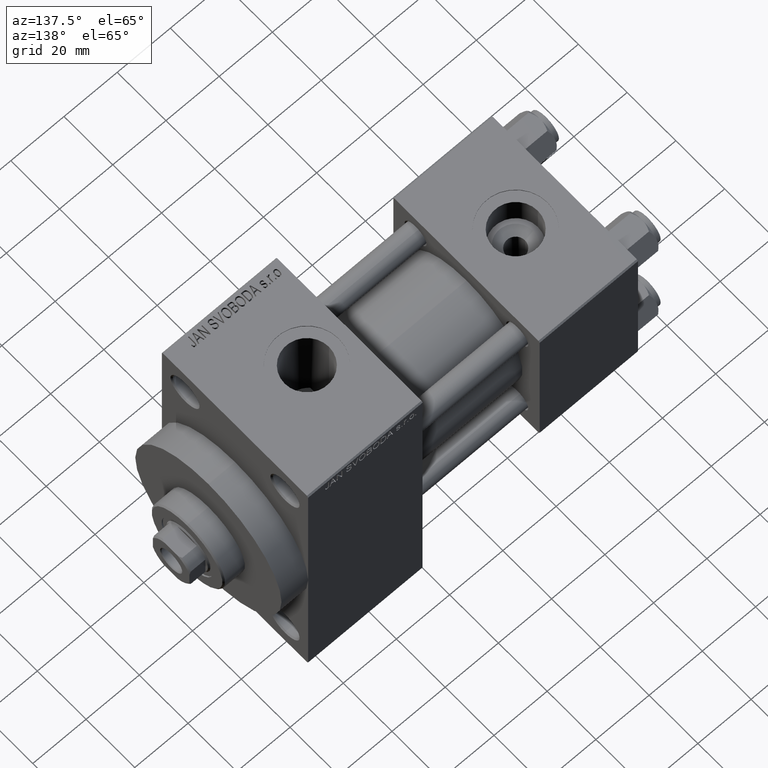
[diagram: clean part render]
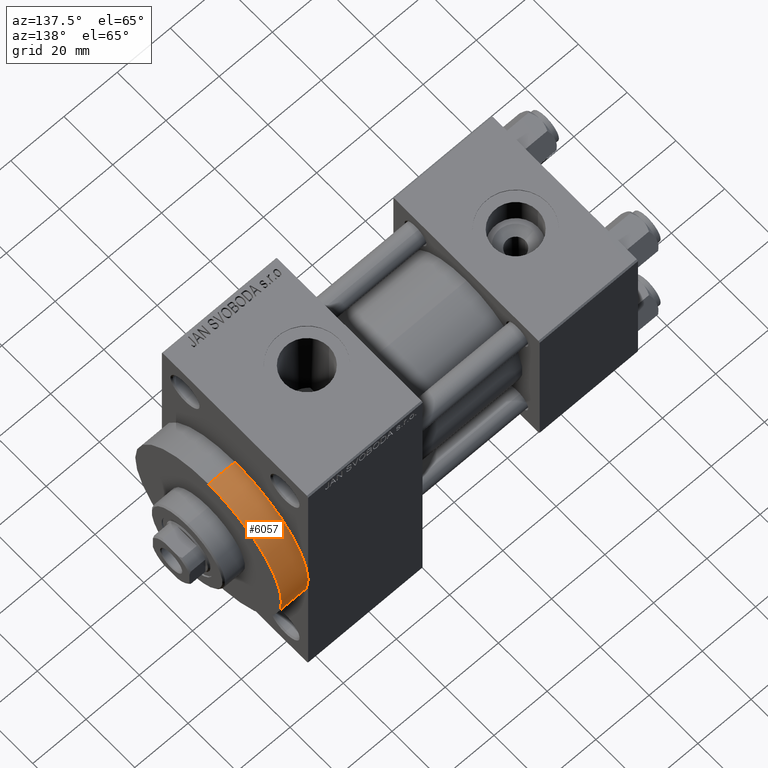
[diagram: same view with one face highlighted and labeled with its STEP entity id]
A machine part, auxiliary view. The second image highlights one B-rep face of the part: STEP entity #6057.
In plain terms, the highlighted cylindrical surface (partial cylindrical patch) has radius 30 mm, axis along (-1, -0, -0).
Its self-contained STEP definition (entity closure, byte-faithful):
#322 = VERTEX_POINT ( 'NONE', #27105 ) ;
#903 = DIRECTION ( 'NONE',  ( 0.000000000000000000, 0.000000000000000000, 1.000000000000000000 ) ) ;
#1486 = VECTOR ( 'NONE', #13712, 1000.000000000000000 ) ;
#1659 = CIRCLE ( 'NONE', #26069, 30.00000000000000000 ) ;
#1713 = EDGE_LOOP ( 'NONE', ( #7870, #40277, #39747, #16330, #43241 ) ) ;
#2275 = CARTESIAN_POINT ( 'NONE',  ( 133.9999999999999716, 0.000000000000000000, 30.00000000000000000 ) ) ;
#3780 = DIRECTION ( 'NONE',  ( 0.000000000000000000, 0.000000000000000000, -1.000000000000000000 ) ) ;
#6057 = ADVANCED_FACE ( 'NONE', ( #33153 ), #15696, .T. ) ;
#6643 = AXIS2_PLACEMENT_3D ( 'NONE', #29105, #7380, #3780 ) ;
#7380 = DIRECTION ( 'NONE',  ( 1.000000000000000000, 0.000000000000000000, 0.000000000000000000 ) ) ;
#7870 = ORIENTED_EDGE ( 'NONE', *, *, #36789, .F. ) ;
#8299 = DIRECTION ( 'NONE',  ( -1.000000000000000000, -0.000000000000000000, -0.000000000000000000 ) ) ;
#8517 = EDGE_CURVE ( 'NONE', #16460, #24244, #25327, .T. ) ;
#10572 = AXIS2_PLACEMENT_3D ( 'NONE', #12129, #8299, #903 ) ;
#12129 = CARTESIAN_POINT ( 'NONE',  ( 133.9999999999999716, 0.000000000000000000, 0.000000000000000000 ) ) ;
#12567 = CIRCLE ( 'NONE', #27055, 30.00000000000000000 ) ;
#12625 = DIRECTION ( 'NONE',  ( 0.000000000000000000, 0.000000000000000000, -1.000000000000000000 ) ) ;
#13327 = CARTESIAN_POINT ( 'NONE',  ( 123.9999999999999858, 3.673940397442059178E-15, -30.00000000000000000 ) ) ;
#13712 = DIRECTION ( 'NONE',  ( -1.000000000000000000, -0.000000000000000000, -0.000000000000000000 ) ) ;
#15696 = CYLINDRICAL_SURFACE ( 'NONE', #10572, 30.00000000000000000 ) ;
#16330 = ORIENTED_EDGE ( 'NONE', *, *, #22318, .T. ) ;
#16460 = VERTEX_POINT ( 'NONE', #20343 ) ;
#18068 = CARTESIAN_POINT ( 'NONE',  ( 123.9999999999999858, 0.000000000000000000, 0.000000000000000000 ) ) ;
#19785 = VECTOR ( 'NONE', #36311, 1000.000000000000000 ) ;
#20039 = DIRECTION ( 'NONE',  ( 1.000000000000000000, 0.000000000000000000, 0.000000000000000000 ) ) ;
#20343 = CARTESIAN_POINT ( 'NONE',  ( 133.9999999999999716, 3.673940397442059178E-15, -30.00000000000000000 ) ) ;
#21048 = CARTESIAN_POINT ( 'NONE',  ( 123.9999999999999858, 0.000000000000000000, 30.00000000000000000 ) ) ;
#22318 = EDGE_CURVE ( 'NONE', #322, #29970, #27247, .T. ) ;
#24244 = VERTEX_POINT ( 'NONE', #13327 ) ;
#25327 = LINE ( 'NONE', #32261, #19785 ) ;
#26069 = AXIS2_PLACEMENT_3D ( 'NONE', #42479, #20039, #12625 ) ;
#27055 = AXIS2_PLACEMENT_3D ( 'NONE', #18068, #28586, #35134 ) ;
#27105 = CARTESIAN_POINT ( 'NONE',  ( 123.9999999999999858, 30.00000000000000000, 0.000000000000000000 ) ) ;
#27247 = CIRCLE ( 'NONE', #6643, 30.00000000000000000 ) ;
#28586 = DIRECTION ( 'NONE',  ( 1.000000000000000000, 0.000000000000000000, 0.000000000000000000 ) ) ;
#29105 = CARTESIAN_POINT ( 'NONE',  ( 123.9999999999999858, 0.000000000000000000, 0.000000000000000000 ) ) ;
#29970 = VERTEX_POINT ( 'NONE', #21048 ) ;
#30728 = VERTEX_POINT ( 'NONE', #41926 ) ;
#31835 = EDGE_CURVE ( 'NONE', #30728, #29970, #35236, .T. ) ;
#32261 = CARTESIAN_POINT ( 'NONE',  ( 133.9999999999999716, 3.673940397442059178E-15, -30.00000000000000000 ) ) ;
#33153 = FACE_OUTER_BOUND ( 'NONE', #1713, .T. ) ;
#35134 = DIRECTION ( 'NONE',  ( 0.000000000000000000, 0.000000000000000000, -1.000000000000000000 ) ) ;
#35236 = LINE ( 'NONE', #2275, #1486 ) ;
#36311 = DIRECTION ( 'NONE',  ( -1.000000000000000000, -0.000000000000000000, -0.000000000000000000 ) ) ;
#36789 = EDGE_CURVE ( 'NONE', #16460, #30728, #1659, .T. ) ;
#39747 = ORIENTED_EDGE ( 'NONE', *, *, #40844, .T. ) ;
#40277 = ORIENTED_EDGE ( 'NONE', *, *, #8517, .T. ) ;
#40844 = EDGE_CURVE ( 'NONE', #24244, #322, #12567, .T. ) ;
#41926 = CARTESIAN_POINT ( 'NONE',  ( 133.9999999999999716, 0.000000000000000000, 30.00000000000000000 ) ) ;
#42479 = CARTESIAN_POINT ( 'NONE',  ( 133.9999999999999716, 0.000000000000000000, 0.000000000000000000 ) ) ;
#43241 = ORIENTED_EDGE ( 'NONE', *, *, #31835, .F. ) ;